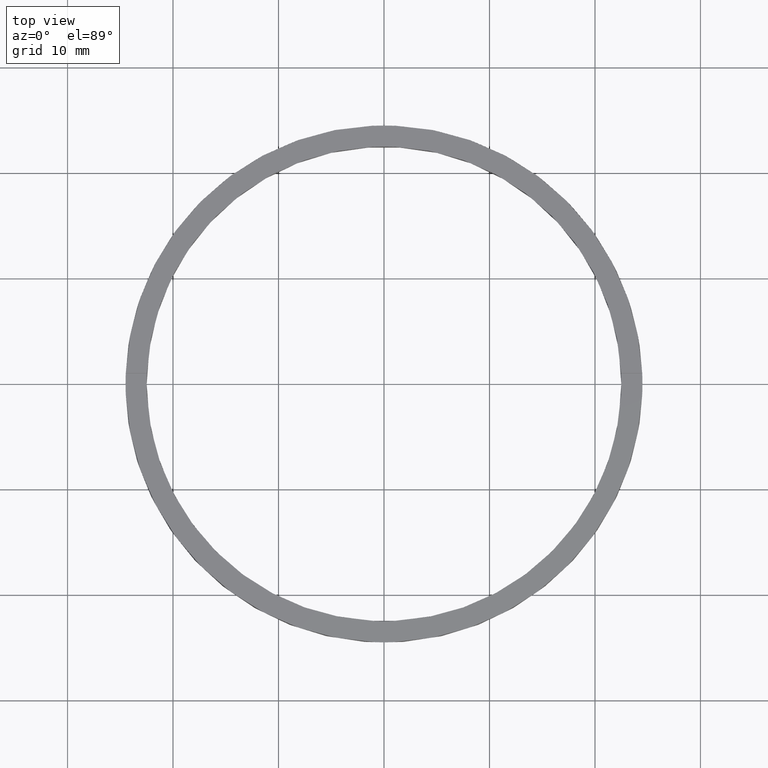
[diagram: clean part render]
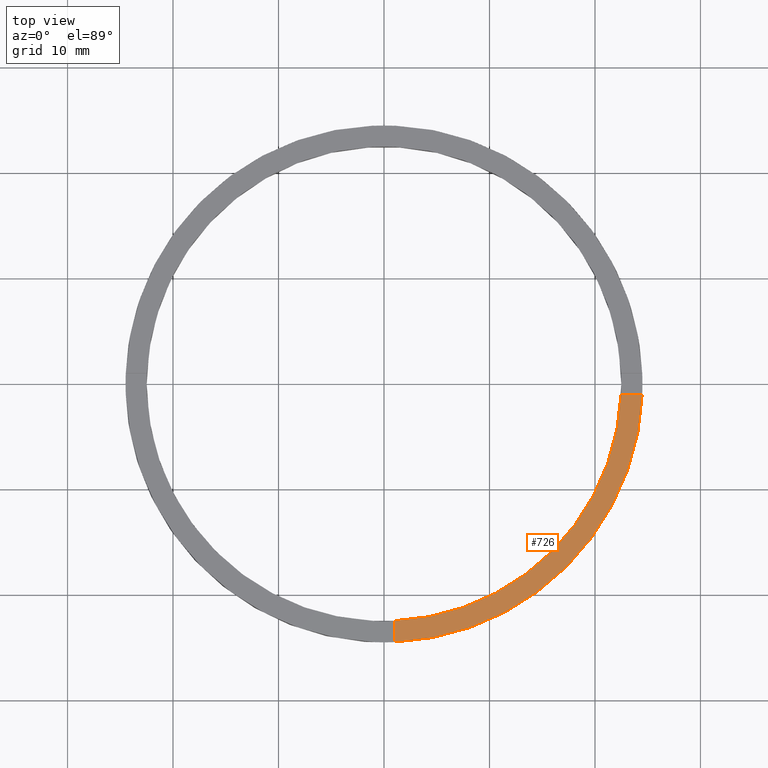
[diagram: same view with one face highlighted and labeled with its STEP entity id]
A machine part, top view. The second image highlights one B-rep face of the part: STEP entity #726.
In plain terms, the highlighted planar face has unit normal (0, 0, 1).
Its self-contained STEP definition (entity closure, byte-faithful):
#16 = EDGE_CURVE ( 'NONE', #448, #340, #294, .T. ) ;
#36 = LINE ( 'NONE', #100, #565 ) ;
#76 = ORIENTED_EDGE ( 'NONE', *, *, #177, .F. ) ;
#91 = CIRCLE ( 'NONE', #755, 22.50000000000000355 ) ;
#98 = CARTESIAN_POINT ( 'NONE',  ( 0.9999999999998389066, -22.47776679298903346, 2.500000000000000000 ) ) ;
#100 = CARTESIAN_POINT ( 'NONE',  ( 0.9999999999998380185, -14.50000000000018119, 2.500000000000000000 ) ) ;
#114 = CARTESIAN_POINT ( 'NONE',  ( 14.49999999999999467, -1.000000000000158096, 2.500000000000000000 ) ) ;
#126 = DIRECTION ( 'NONE',  ( 1.000000000000000000, 0.000000000000000000, 0.000000000000000000 ) ) ;
#134 = DIRECTION ( 'NONE',  ( -1.301042606982605321E-16, 1.000000000000000000, -0.000000000000000000 ) ) ;
#142 = ORIENTED_EDGE ( 'NONE', *, *, #714, .T. ) ;
#163 = DIRECTION ( 'NONE',  ( 1.000000000000000000, 4.336808689942018352E-17, 0.000000000000000000 ) ) ;
#177 = EDGE_CURVE ( 'NONE', #364, #504, #36, .T. ) ;
#202 = CARTESIAN_POINT ( 'NONE',  ( 0.000000000000000000, 0.000000000000000000, 2.500000000000000000 ) ) ;
#206 = DIRECTION ( 'NONE',  ( 0.000000000000000000, 0.000000000000000000, 1.000000000000000000 ) ) ;
#245 = CARTESIAN_POINT ( 'NONE',  ( 0.000000000000000000, 0.000000000000000000, 2.500000000000000000 ) ) ;
#260 = DIRECTION ( 'NONE',  ( 0.000000000000000000, 0.000000000000000000, 1.000000000000000000 ) ) ;
#294 = LINE ( 'NONE', #114, #540 ) ;
#322 = AXIS2_PLACEMENT_3D ( 'NONE', #202, #206, #659 ) ;
#325 = CIRCLE ( 'NONE', #399, 24.50000000000000000 ) ;
#327 = FACE_OUTER_BOUND ( 'NONE', #332, .T. ) ;
#330 = DIRECTION ( 'NONE',  ( 1.000000000000000000, 0.000000000000000000, 0.000000000000000000 ) ) ;
#332 = EDGE_LOOP ( 'NONE', ( #686, #433, #76, #142 ) ) ;
#340 = VERTEX_POINT ( 'NONE', #602 ) ;
#356 = CARTESIAN_POINT ( 'NONE',  ( 0.000000000000000000, 0.000000000000000000, 2.500000000000000000 ) ) ;
#364 = VERTEX_POINT ( 'NONE', #550 ) ;
#399 = AXIS2_PLACEMENT_3D ( 'NONE', #356, #260, #126 ) ;
#433 = ORIENTED_EDGE ( 'NONE', *, *, #470, .F. ) ;
#448 = VERTEX_POINT ( 'NONE', #618 ) ;
#464 = PLANE ( 'NONE',  #322 ) ;
#470 = EDGE_CURVE ( 'NONE', #504, #448, #91, .T. ) ;
#504 = VERTEX_POINT ( 'NONE', #98 ) ;
#540 = VECTOR ( 'NONE', #163, 1000.000000000000000 ) ;
#550 = CARTESIAN_POINT ( 'NONE',  ( 0.9999999999998393507, -24.47958332978729956, 2.500000000000000000 ) ) ;
#565 = VECTOR ( 'NONE', #134, 1000.000000000000000 ) ;
#602 = CARTESIAN_POINT ( 'NONE',  ( 24.47958332978728890, -1.000000000000157652, 2.500000000000000000 ) ) ;
#618 = CARTESIAN_POINT ( 'NONE',  ( 22.47776679298901925, -1.000000000000157874, 2.500000000000000000 ) ) ;
#659 = DIRECTION ( 'NONE',  ( 1.000000000000000000, 0.000000000000000000, -0.000000000000000000 ) ) ;
#678 = DIRECTION ( 'NONE',  ( 0.000000000000000000, 0.000000000000000000, 1.000000000000000000 ) ) ;
#686 = ORIENTED_EDGE ( 'NONE', *, *, #16, .F. ) ;
#714 = EDGE_CURVE ( 'NONE', #364, #340, #325, .T. ) ;
#726 = ADVANCED_FACE ( 'NONE', ( #327 ), #464, .T. ) ;
#755 = AXIS2_PLACEMENT_3D ( 'NONE', #245, #678, #330 ) ;